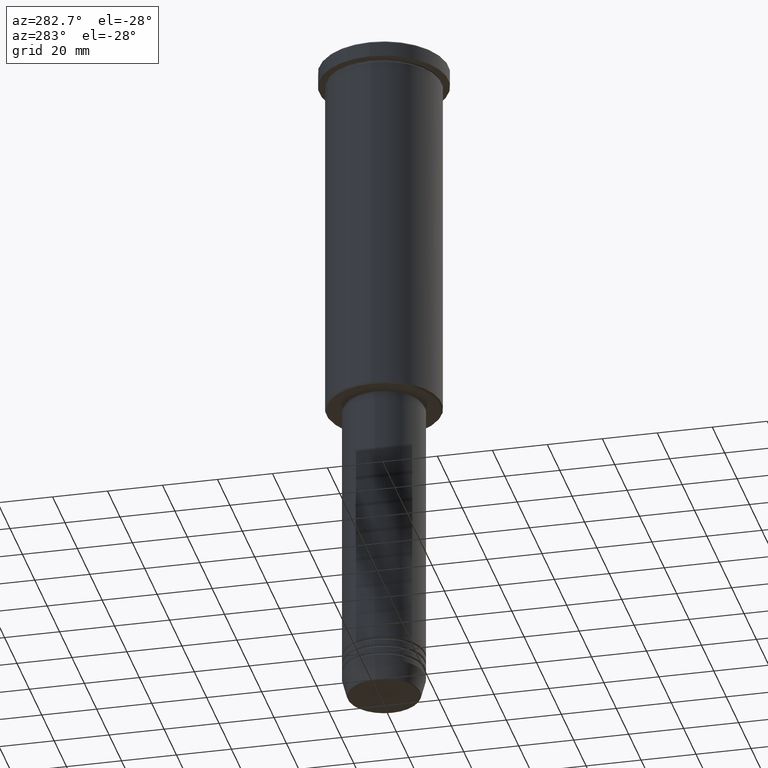
[diagram: clean part render]
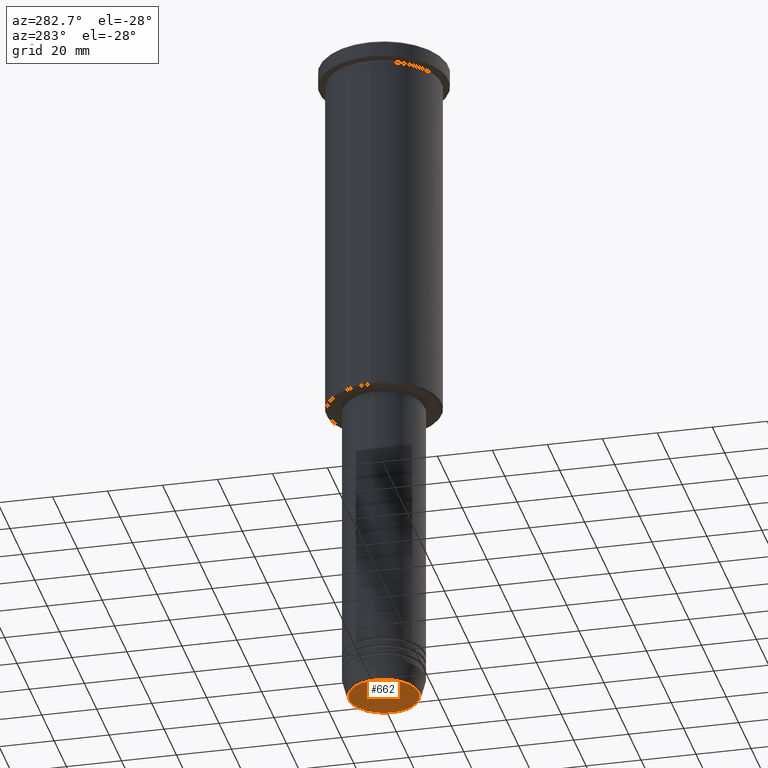
[diagram: same view with one face highlighted and labeled with its STEP entity id]
A machine part, auxiliary view. The second image highlights one B-rep face of the part: STEP entity #662.
In plain terms, the highlighted planar face has unit normal (0, -0, 1).
Its self-contained STEP definition (entity closure, byte-faithful):
#67 = CIRCLE ( 'NONE', #907, 12.74069215899266538 ) ;
#94 = VERTEX_POINT ( 'NONE', #679 ) ;
#96 = DIRECTION ( 'NONE',  ( 0.000000000000000000, -0.000000000000000000, 1.000000000000000000 ) ) ;
#117 = EDGE_LOOP ( 'NONE', ( #244, #754 ) ) ;
#186 = CIRCLE ( 'NONE', #1029, 12.74069215899266538 ) ;
#193 = FACE_OUTER_BOUND ( 'NONE', #117, .T. ) ;
#214 = DIRECTION ( 'NONE',  ( 1.000000000000000000, 0.000000000000000000, 0.000000000000000000 ) ) ;
#240 = EDGE_CURVE ( 'NONE', #427, #94, #186, .T. ) ;
#244 = ORIENTED_EDGE ( 'NONE', *, *, #502, .T. ) ;
#365 = PLANE ( 'NONE',  #597 ) ;
#427 = VERTEX_POINT ( 'NONE', #919 ) ;
#494 = CARTESIAN_POINT ( 'NONE',  ( 0.000000000000000000, 0.000000000000000000, -251.0000000000000000 ) ) ;
#502 = EDGE_CURVE ( 'NONE', #94, #427, #67, .T. ) ;
#532 = CARTESIAN_POINT ( 'NONE',  ( 0.000000000000000000, 0.000000000000000000, -251.0000000000000000 ) ) ;
#597 = AXIS2_PLACEMENT_3D ( 'NONE', #896, #96, #1091 ) ;
#662 = ADVANCED_FACE ( 'NONE', ( #193 ), #365, .F. ) ;
#663 = DIRECTION ( 'NONE',  ( 0.000000000000000000, 0.000000000000000000, -1.000000000000000000 ) ) ;
#679 = CARTESIAN_POINT ( 'NONE',  ( 12.74069215899266538, 0.000000000000000000, -251.0000000000000000 ) ) ;
#754 = ORIENTED_EDGE ( 'NONE', *, *, #240, .T. ) ;
#784 = DIRECTION ( 'NONE',  ( 0.000000000000000000, 0.000000000000000000, -1.000000000000000000 ) ) ;
#896 = CARTESIAN_POINT ( 'NONE',  ( 0.000000000000000000, 0.000000000000000000, -251.0000000000000000 ) ) ;
#907 = AXIS2_PLACEMENT_3D ( 'NONE', #494, #663, #214 ) ;
#919 = CARTESIAN_POINT ( 'NONE',  ( -12.74069215899266538, 1.589857736427681824E-15, -251.0000000000000000 ) ) ;
#1029 = AXIS2_PLACEMENT_3D ( 'NONE', #532, #784, #1157 ) ;
#1091 = DIRECTION ( 'NONE',  ( 1.000000000000000000, 0.000000000000000000, 0.000000000000000000 ) ) ;
#1157 = DIRECTION ( 'NONE',  ( 1.000000000000000000, 0.000000000000000000, 0.000000000000000000 ) ) ;